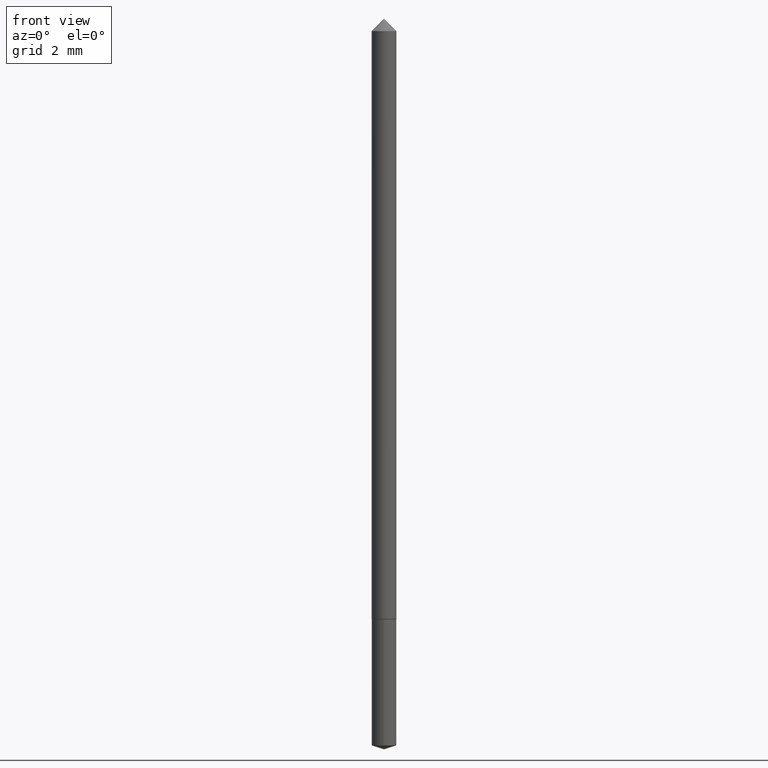
[diagram: clean part render]
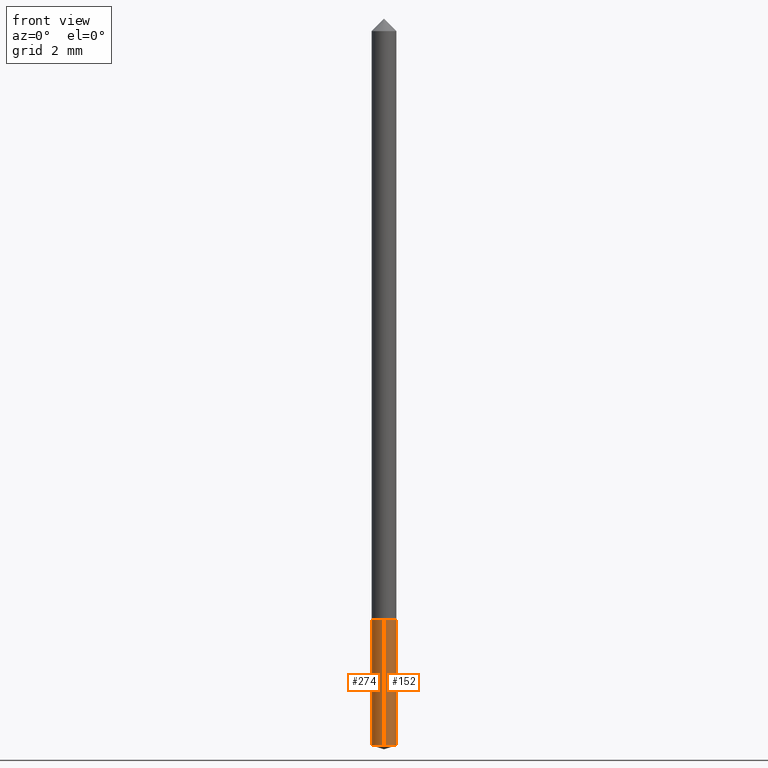
[diagram: same view with one multi-face feature highlighted, each face labeled with its STEP entity id]
A machine part, front view. The highlighted faces form ONE feature: a constant-radius fillet chain: 2 tangent blend faces with common blend radius 0.4 mm. The faces share edges in the B-rep.
Their STEP definitions:
[1] entity #152 (Cylinder):
#18 = DIRECTION ( 'NONE',  ( -2.445242383942665067E-29, 3.491805588381518378E-15, 1.000000000000000000 ) ) ;
#19 = CARTESIAN_POINT ( 'NONE',  ( -1.099816621735396379E-16, -0.01575000000000272016, -0.7794999999999999707 ) ) ;
#24 = DIRECTION ( 'NONE',  ( -6.982962677686265922E-15, -1.000000000000000000, 0.000000000000000000 ) ) ;
#25 = CARTESIAN_POINT ( 'NONE',  ( 1.119104808822387803E-16, 0.01574999999999672148, -0.9399340440751560166 ) ) ;
#47 = DIRECTION ( 'NONE',  ( -2.445242383942665067E-29, 3.491805588381518378E-15, 1.000000000000000000 ) ) ;
#50 = LINE ( 'NONE', #162, #203 ) ;
#63 = VERTEX_POINT ( 'NONE', #104 ) ;
#70 = CARTESIAN_POINT ( 'NONE',  ( 1.906242934421314002E-29, -2.721609703628232138E-15, -0.7794999999999999707 ) ) ;
#79 = CARTESIAN_POINT ( 'NONE',  ( 2.298543058821210983E-29, -3.281814195296508762E-15, -0.9399340440751560166 ) ) ;
#84 = CIRCLE ( 'NONE', #228, 0.01575000000000000011 ) ;
#102 = VERTEX_POINT ( 'NONE', #129 ) ;
#104 = CARTESIAN_POINT ( 'NONE',  ( 1.119104808822387803E-16, 0.01574999999999728006, -0.7794999999999999707 ) ) ;
#114 = EDGE_CURVE ( 'NONE', #102, #288, #84, .T. ) ;
#123 = LINE ( 'NONE', #319, #243 ) ;
#129 = CARTESIAN_POINT ( 'NONE',  ( -1.099816621735357305E-16, -0.01575000000000328568, -0.9399340440751560166 ) ) ;
#136 = DIRECTION ( 'NONE',  ( -2.445242383942665067E-29, 3.491805588381518378E-15, 1.000000000000000000 ) ) ;
#152 = ADVANCED_FACE ( 'NONE', ( #317 ), #177, .T. ) ;
#162 = CARTESIAN_POINT ( 'NONE',  ( -1.099816621735396379E-16, -0.01575000000000272016, -0.7794999999999999707 ) ) ;
#177 = CYLINDRICAL_SURFACE ( 'NONE', #323, 0.01575000000000000011 ) ;
#198 = EDGE_LOOP ( 'NONE', ( #318, #224, #269, #260 ) ) ;
#203 = VECTOR ( 'NONE', #136, 39.37007874015748143 ) ;
#206 = DIRECTION ( 'NONE',  ( -6.982962677686265922E-15, -1.000000000000000000, 0.000000000000000000 ) ) ;
#207 = EDGE_CURVE ( 'NONE', #288, #63, #123, .T. ) ;
#224 = ORIENTED_EDGE ( 'NONE', *, *, #207, .T. ) ;
#228 = AXIS2_PLACEMENT_3D ( 'NONE', #79, #47, #24 ) ;
#243 = VECTOR ( 'NONE', #348, 39.37007874015748143 ) ;
#248 = DIRECTION ( 'NONE',  ( -6.982962677686265922E-15, -1.000000000000000000, 0.000000000000000000 ) ) ;
#251 = CARTESIAN_POINT ( 'NONE',  ( 1.906242934421314002E-29, -2.721609703628232138E-15, -0.7794999999999999707 ) ) ;
#260 = ORIENTED_EDGE ( 'NONE', *, *, #341, .F. ) ;
#267 = VERTEX_POINT ( 'NONE', #19 ) ;
#269 = ORIENTED_EDGE ( 'NONE', *, *, #282, .F. ) ;
#282 = EDGE_CURVE ( 'NONE', #267, #63, #301, .T. ) ;
#288 = VERTEX_POINT ( 'NONE', #25 ) ;
#292 = DIRECTION ( 'NONE',  ( -2.445242383942665067E-29, 3.491805588381518378E-15, 1.000000000000000000 ) ) ;
#301 = CIRCLE ( 'NONE', #352, 0.01575000000000000011 ) ;
#317 = FACE_OUTER_BOUND ( 'NONE', #198, .T. ) ;
#318 = ORIENTED_EDGE ( 'NONE', *, *, #114, .T. ) ;
#319 = CARTESIAN_POINT ( 'NONE',  ( 1.119104808822348360E-16, 0.01574999999999728006, -0.7794999999999999707 ) ) ;
#323 = AXIS2_PLACEMENT_3D ( 'NONE', #70, #292, #206 ) ;
#341 = EDGE_CURVE ( 'NONE', #102, #267, #50, .T. ) ;
#348 = DIRECTION ( 'NONE',  ( -2.445242383942665067E-29, 3.491805588381518378E-15, 1.000000000000000000 ) ) ;
#352 = AXIS2_PLACEMENT_3D ( 'NONE', #251, #18, #248 ) ;
[2] entity #274 (Cylinder):
#3 = ORIENTED_EDGE ( 'NONE', *, *, #207, .F. ) ;
#19 = CARTESIAN_POINT ( 'NONE',  ( -1.099816621735396379E-16, -0.01575000000000272016, -0.7794999999999999707 ) ) ;
#25 = CARTESIAN_POINT ( 'NONE',  ( 1.119104808822387803E-16, 0.01574999999999672148, -0.9399340440751560166 ) ) ;
#38 = AXIS2_PLACEMENT_3D ( 'NONE', #275, #247, #221 ) ;
#44 = CIRCLE ( 'NONE', #38, 0.01575000000000000011 ) ;
#45 = CYLINDRICAL_SURFACE ( 'NONE', #211, 0.01575000000000000011 ) ;
#50 = LINE ( 'NONE', #162, #203 ) ;
#63 = VERTEX_POINT ( 'NONE', #104 ) ;
#101 = CARTESIAN_POINT ( 'NONE',  ( 1.906242934421314002E-29, -2.721609703628232138E-15, -0.7794999999999999707 ) ) ;
#102 = VERTEX_POINT ( 'NONE', #129 ) ;
#104 = CARTESIAN_POINT ( 'NONE',  ( 1.119104808822387803E-16, 0.01574999999999728006, -0.7794999999999999707 ) ) ;
#105 = EDGE_CURVE ( 'NONE', #63, #267, #117, .T. ) ;
#117 = CIRCLE ( 'NONE', #303, 0.01575000000000000011 ) ;
#123 = LINE ( 'NONE', #319, #243 ) ;
#129 = CARTESIAN_POINT ( 'NONE',  ( -1.099816621735357305E-16, -0.01575000000000328568, -0.9399340440751560166 ) ) ;
#133 = FACE_OUTER_BOUND ( 'NONE', #176, .T. ) ;
#136 = DIRECTION ( 'NONE',  ( -2.445242383942665067E-29, 3.491805588381518378E-15, 1.000000000000000000 ) ) ;
#144 = ORIENTED_EDGE ( 'NONE', *, *, #341, .T. ) ;
#161 = DIRECTION ( 'NONE',  ( -2.445242383942665067E-29, 3.491805588381518378E-15, 1.000000000000000000 ) ) ;
#162 = CARTESIAN_POINT ( 'NONE',  ( -1.099816621735396379E-16, -0.01575000000000272016, -0.7794999999999999707 ) ) ;
#176 = EDGE_LOOP ( 'NONE', ( #3, #336, #144, #356 ) ) ;
#188 = CARTESIAN_POINT ( 'NONE',  ( 1.906242934421314002E-29, -2.721609703628232138E-15, -0.7794999999999999707 ) ) ;
#203 = VECTOR ( 'NONE', #136, 39.37007874015748143 ) ;
#207 = EDGE_CURVE ( 'NONE', #288, #63, #123, .T. ) ;
#211 = AXIS2_PLACEMENT_3D ( 'NONE', #188, #161, #334 ) ;
#213 = DIRECTION ( 'NONE',  ( -2.445242383942665067E-29, 3.491805588381518378E-15, 1.000000000000000000 ) ) ;
#221 = DIRECTION ( 'NONE',  ( -6.982962677686265922E-15, -1.000000000000000000, 0.000000000000000000 ) ) ;
#234 = EDGE_CURVE ( 'NONE', #288, #102, #44, .T. ) ;
#243 = VECTOR ( 'NONE', #348, 39.37007874015748143 ) ;
#247 = DIRECTION ( 'NONE',  ( -2.445242383942665067E-29, 3.491805588381518378E-15, 1.000000000000000000 ) ) ;
#267 = VERTEX_POINT ( 'NONE', #19 ) ;
#274 = ADVANCED_FACE ( 'NONE', ( #133 ), #45, .T. ) ;
#275 = CARTESIAN_POINT ( 'NONE',  ( 2.298543058821210983E-29, -3.281814195296508762E-15, -0.9399340440751560166 ) ) ;
#288 = VERTEX_POINT ( 'NONE', #25 ) ;
#297 = DIRECTION ( 'NONE',  ( -6.982962677686265922E-15, -1.000000000000000000, 0.000000000000000000 ) ) ;
#303 = AXIS2_PLACEMENT_3D ( 'NONE', #101, #213, #297 ) ;
#319 = CARTESIAN_POINT ( 'NONE',  ( 1.119104808822348360E-16, 0.01574999999999728006, -0.7794999999999999707 ) ) ;
#334 = DIRECTION ( 'NONE',  ( -6.982962677686265922E-15, -1.000000000000000000, 0.000000000000000000 ) ) ;
#336 = ORIENTED_EDGE ( 'NONE', *, *, #234, .T. ) ;
#341 = EDGE_CURVE ( 'NONE', #102, #267, #50, .T. ) ;
#348 = DIRECTION ( 'NONE',  ( -2.445242383942665067E-29, 3.491805588381518378E-15, 1.000000000000000000 ) ) ;
#356 = ORIENTED_EDGE ( 'NONE', *, *, #105, .F. ) ;